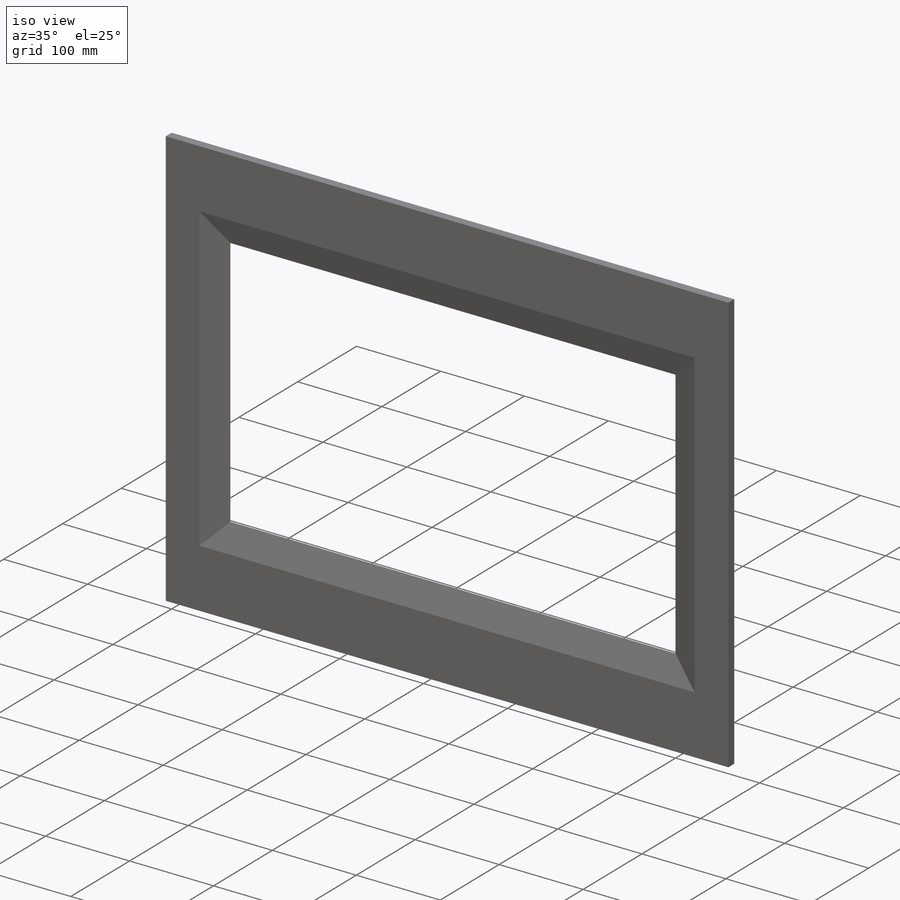
[diagram: iso view]
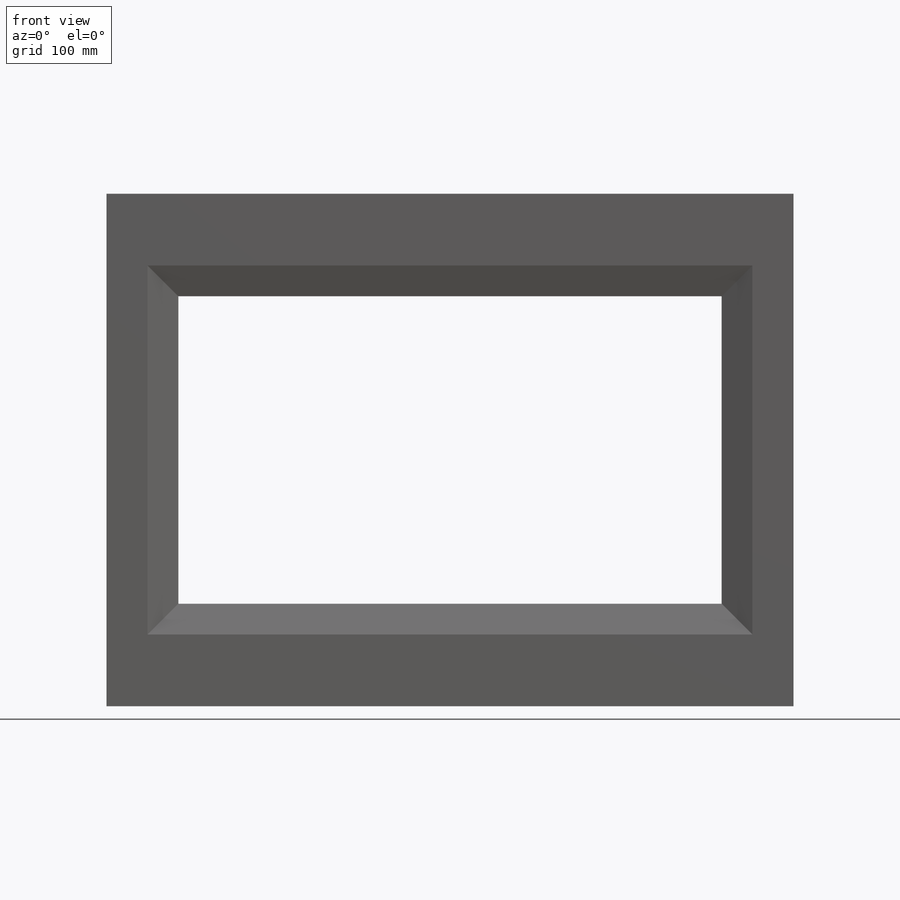
[diagram: front view]
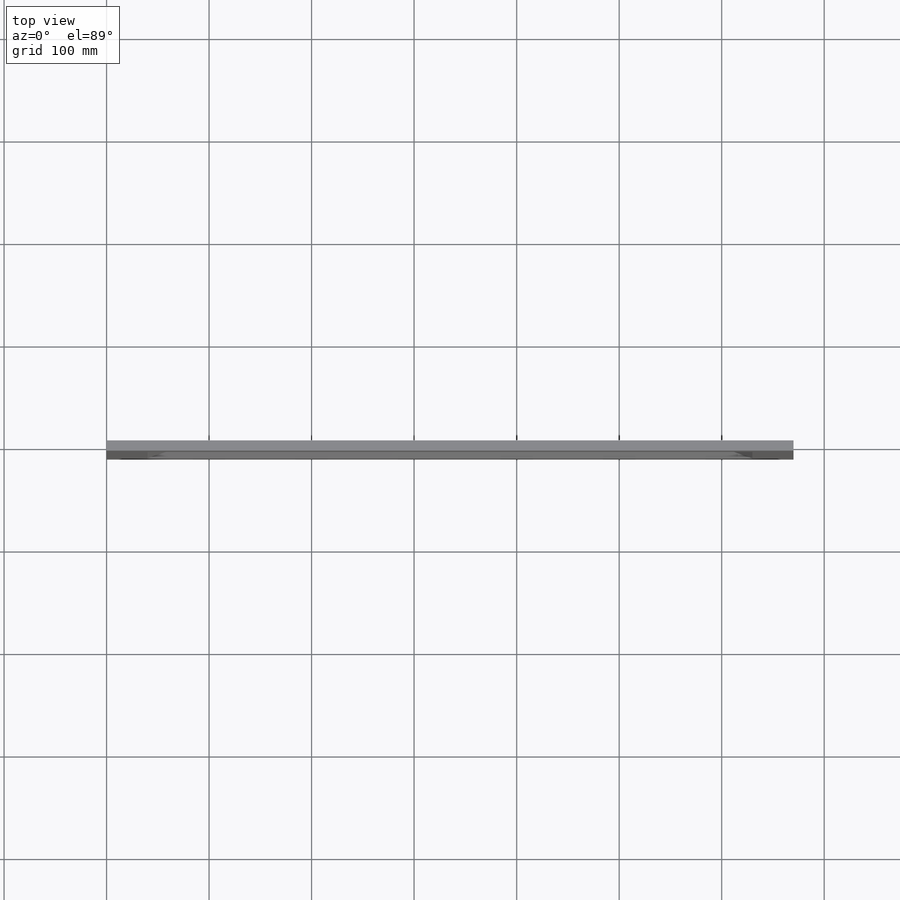
[diagram: top view]
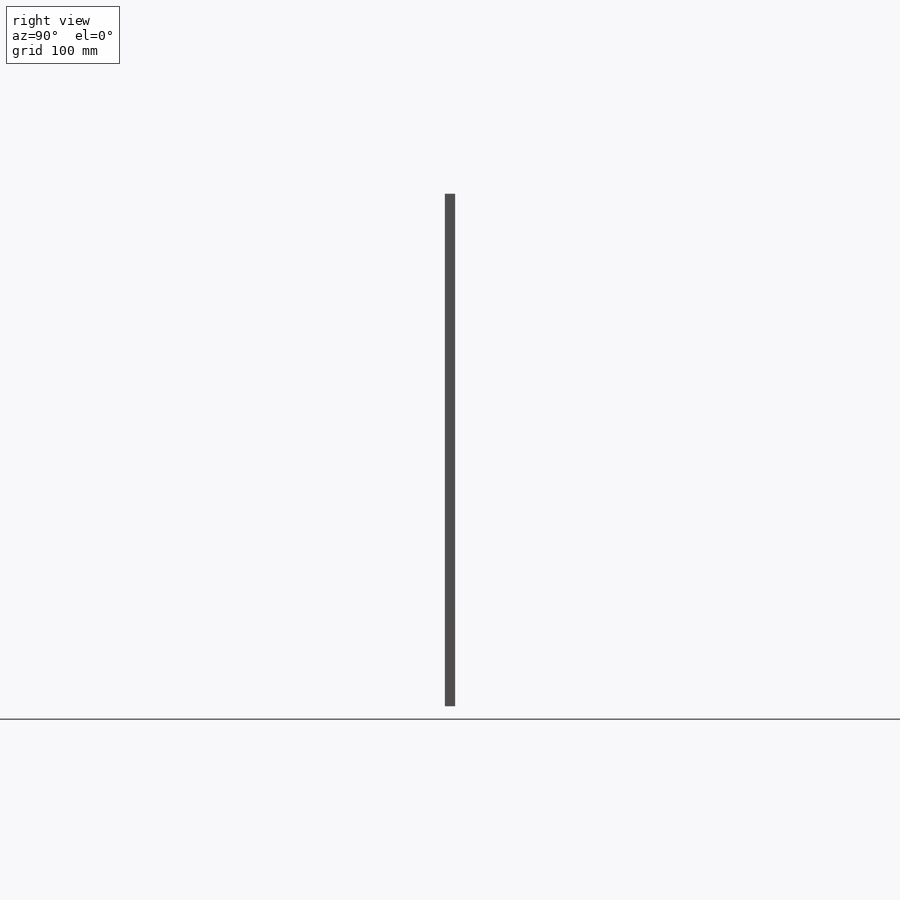
[diagram: right view]
SOLIDWORKS PART (.sldprt)
format: sldprt  version: not decoded by parser v0  size: 141,312 bytes
history: native  units: mm
features: chamfer x4, material x1, sketch x1, extrude x1 (+14 scaffold rows collapsed)
feature tree (21):
  scaffold x14  (default folders/planes/origin — collapsed)
  material  "Material <not specified>"
  sketch  "Sketch1"  dims[D1=670.0mm D2=500.0mm D3=100.0mm D4=300.0mm D5=530.0mm D6=70.0mm D7=70.0mm D8=100.0mm]
  extrude  "Extrude1"  Depth=10mm
  chamfer  "Chamfer1"  Distance=30mm
  chamfer  "Chamfer2"  Distance=30mm
  chamfer  "Chamfer3"  Distance=30mm
  chamfer  "Chamfer4"  Distance=30mm
decode coverage: 6 of 6 modeling features carry decoded parameters
note: suppression state not decoded; provenance and decode notes live in map.json
